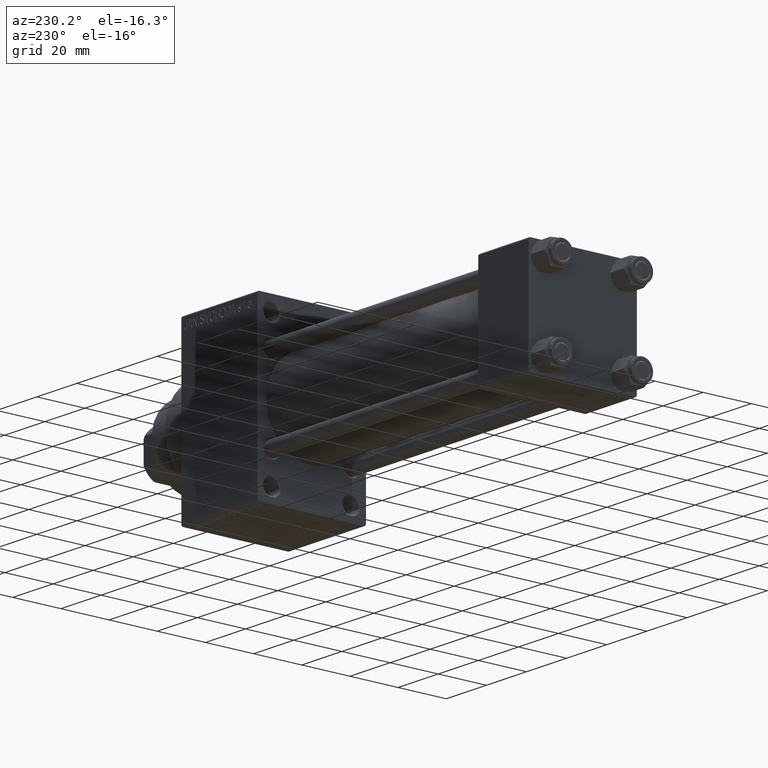
[diagram: clean part render]
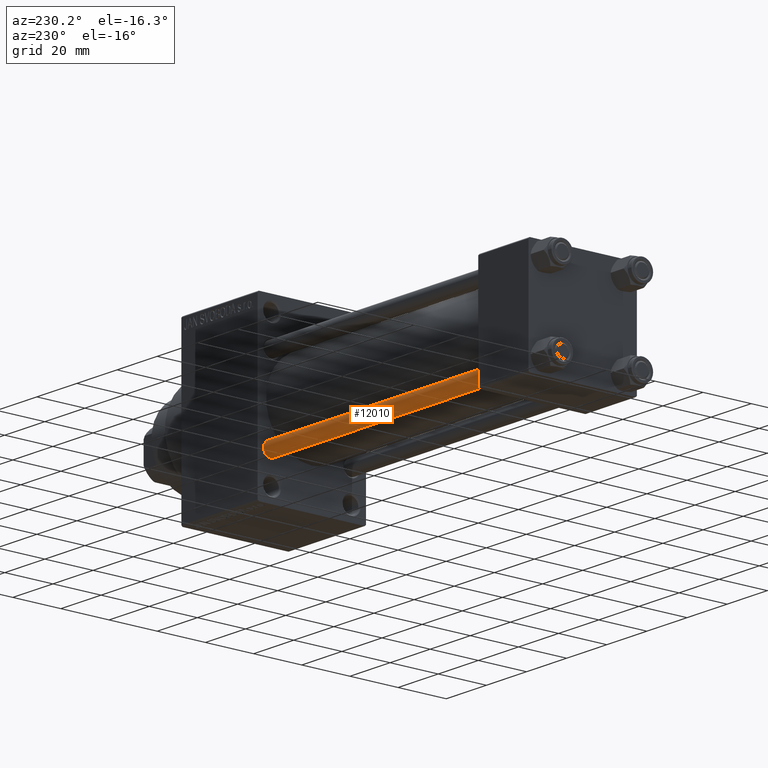
[diagram: same view with one face highlighted and labeled with its STEP entity id]
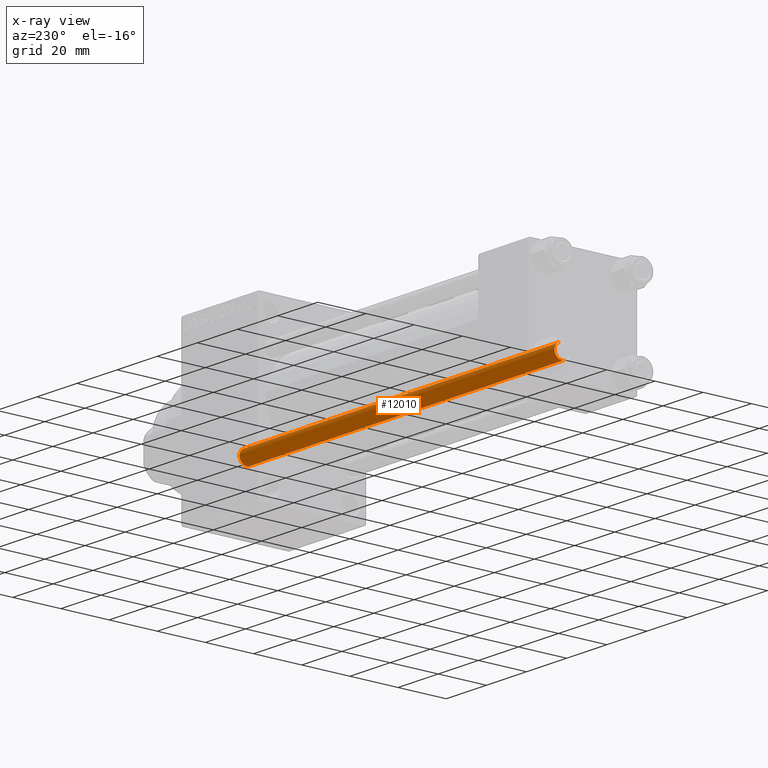
[diagram: x-ray of the same camera — body ghosted, the highlighted face saturated]
A machine part, auxiliary view. The second image highlights one B-rep face of the part: STEP entity #12010.
The next image is the same camera in x-ray: the body ghosted, the highlighted face saturated — about 0% of this face is hidden behind the body in this view.
In plain terms, the highlighted cylindrical surface (edge-blend (fillet) strip) has radius 3 mm, axis along (1, -0, 0).
Its self-contained STEP definition (entity closure, byte-faithful):
#341 = FACE_OUTER_BOUND ( 'NONE', #20042, .T. ) ;
#852 = AXIS2_PLACEMENT_3D ( 'NONE', #25582, #40131, #36319 ) ;
#1508 = DIRECTION ( 'NONE',  ( 1.000000000000000000, 0.000000000000000000, 0.000000000000000000 ) ) ;
#2734 = VERTEX_POINT ( 'NONE', #46377 ) ;
#3477 = AXIS2_PLACEMENT_3D ( 'NONE', #39415, #14878, #25091 ) ;
#5724 = EDGE_CURVE ( 'NONE', #32310, #2734, #37531, .T. ) ;
#6233 = EDGE_CURVE ( 'NONE', #46271, #2734, #44544, .T. ) ;
#11428 = DIRECTION ( 'NONE',  ( -0.000000000000000000, -0.000000000000000000, -1.000000000000000000 ) ) ;
#11488 = CARTESIAN_POINT ( 'NONE',  ( 3.000000000000000444, 3.673940397442060361E-16, 158.0000000000000000 ) ) ;
#12010 = ADVANCED_FACE ( 'NONE', ( #341 ), #43003, .T. ) ;
#14878 = DIRECTION ( 'NONE',  ( -0.000000000000000000, -0.000000000000000000, -1.000000000000000000 ) ) ;
#16216 = AXIS2_PLACEMENT_3D ( 'NONE', #23403, #34371, #1508 ) ;
#18511 = ORIENTED_EDGE ( 'NONE', *, *, #5724, .T. ) ;
#20042 = EDGE_LOOP ( 'NONE', ( #46515, #40303, #18511, #29601 ) ) ;
#20090 = VERTEX_POINT ( 'NONE', #39918 ) ;
#23403 = CARTESIAN_POINT ( 'NONE',  ( 0.000000000000000000, 0.000000000000000000, 0.5000000000000281997 ) ) ;
#25091 = DIRECTION ( 'NONE',  ( -1.000000000000000000, 0.000000000000000000, 0.000000000000000000 ) ) ;
#25582 = CARTESIAN_POINT ( 'NONE',  ( 0.000000000000000000, 0.000000000000000000, 157.5000000000000000 ) ) ;
#25807 = CARTESIAN_POINT ( 'NONE',  ( 3.000000000000000444, 3.673940397442060361E-16, 0.5000000000000281997 ) ) ;
#27493 = CIRCLE ( 'NONE', #852, 3.000000000000000444 ) ;
#29137 = EDGE_CURVE ( 'NONE', #20090, #32310, #40305, .T. ) ;
#29601 = ORIENTED_EDGE ( 'NONE', *, *, #6233, .F. ) ;
#32310 = VERTEX_POINT ( 'NONE', #25807 ) ;
#34371 = DIRECTION ( 'NONE',  ( -0.000000000000000000, -0.000000000000000000, 1.000000000000000000 ) ) ;
#36319 = DIRECTION ( 'NONE',  ( 1.000000000000000000, 0.000000000000000000, 0.000000000000000000 ) ) ;
#37145 = CARTESIAN_POINT ( 'NONE',  ( -3.000000000000000444, 0.000000000000000000, 158.0000000000000000 ) ) ;
#37531 = CIRCLE ( 'NONE', #16216, 3.000000000000000444 ) ;
#38698 = EDGE_CURVE ( 'NONE', #46271, #20090, #27493, .T. ) ;
#39415 = CARTESIAN_POINT ( 'NONE',  ( 0.000000000000000000, 0.000000000000000000, 158.0000000000000000 ) ) ;
#39918 = CARTESIAN_POINT ( 'NONE',  ( 3.000000000000000444, 3.673940397442060361E-16, 157.5000000000000000 ) ) ;
#40131 = DIRECTION ( 'NONE',  ( 0.000000000000000000, 0.000000000000000000, -1.000000000000000000 ) ) ;
#40303 = ORIENTED_EDGE ( 'NONE', *, *, #29137, .T. ) ;
#40304 = VECTOR ( 'NONE', #43897, 1000.000000000000000 ) ;
#40305 = LINE ( 'NONE', #11488, #40304 ) ;
#43003 = CYLINDRICAL_SURFACE ( 'NONE', #3477, 3.000000000000000444 ) ;
#43897 = DIRECTION ( 'NONE',  ( -0.000000000000000000, -0.000000000000000000, -1.000000000000000000 ) ) ;
#44544 = LINE ( 'NONE', #37145, #46655 ) ;
#45152 = CARTESIAN_POINT ( 'NONE',  ( -3.000000000000000444, 0.000000000000000000, 157.5000000000000000 ) ) ;
#46271 = VERTEX_POINT ( 'NONE', #45152 ) ;
#46377 = CARTESIAN_POINT ( 'NONE',  ( -3.000000000000000444, 0.000000000000000000, 0.5000000000000281997 ) ) ;
#46515 = ORIENTED_EDGE ( 'NONE', *, *, #38698, .T. ) ;
#46655 = VECTOR ( 'NONE', #11428, 1000.000000000000000 ) ;